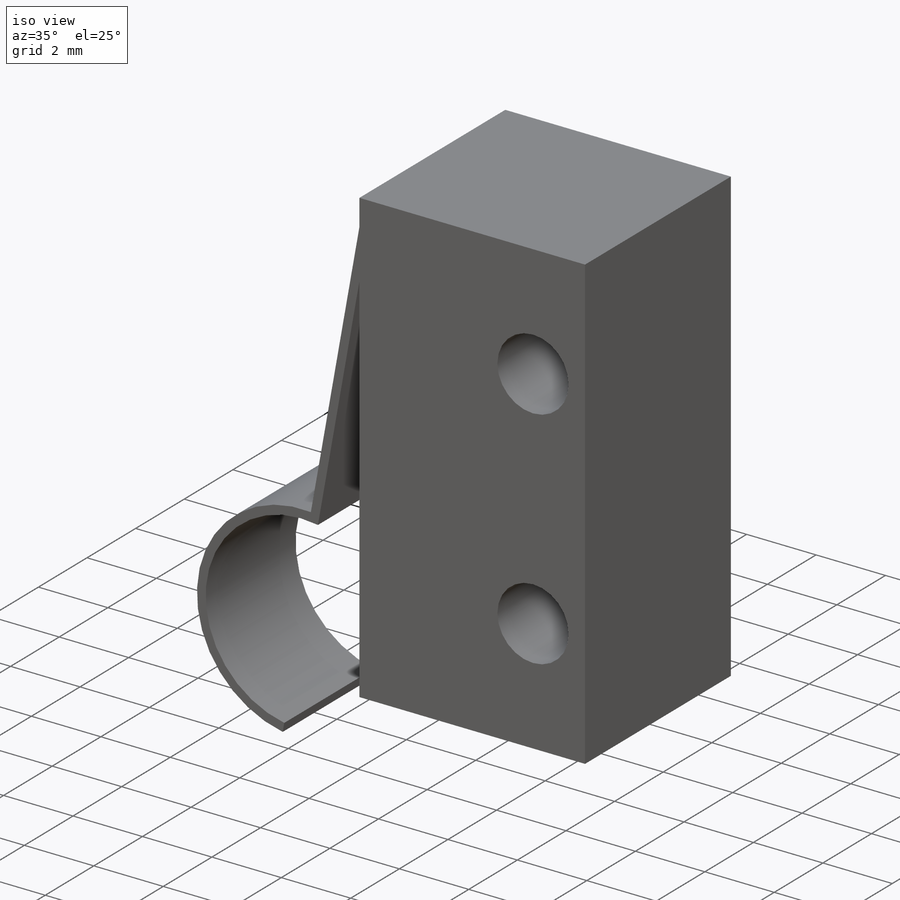
[diagram: iso view]
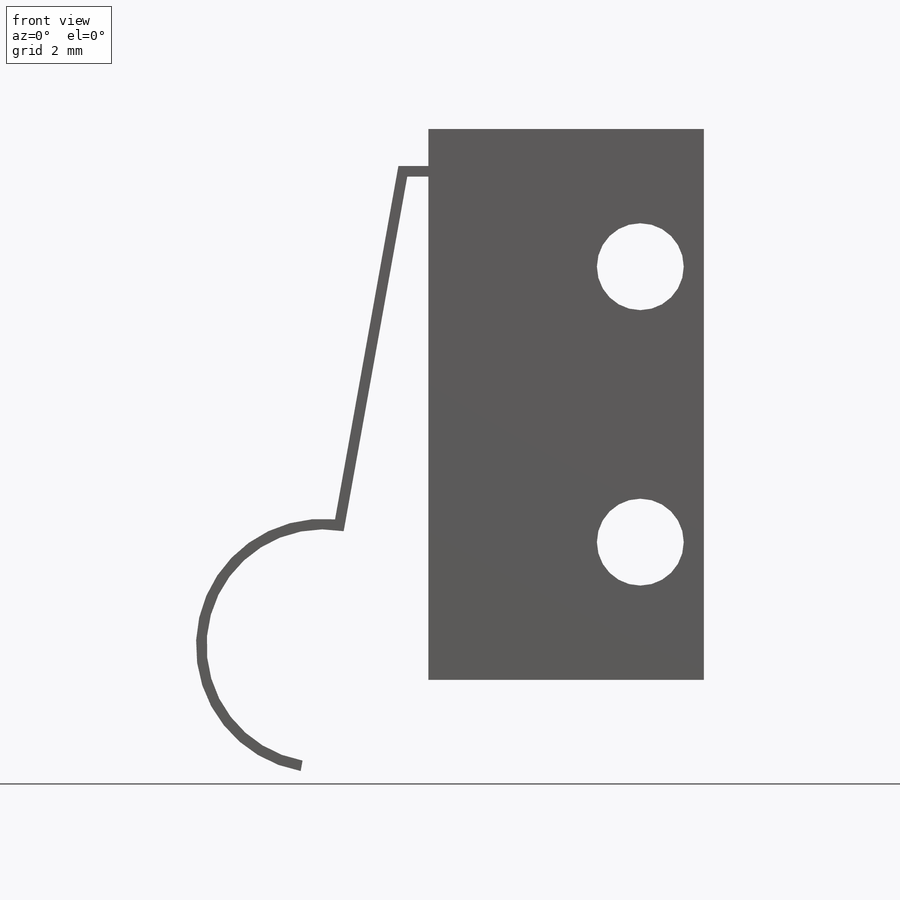
[diagram: front view]
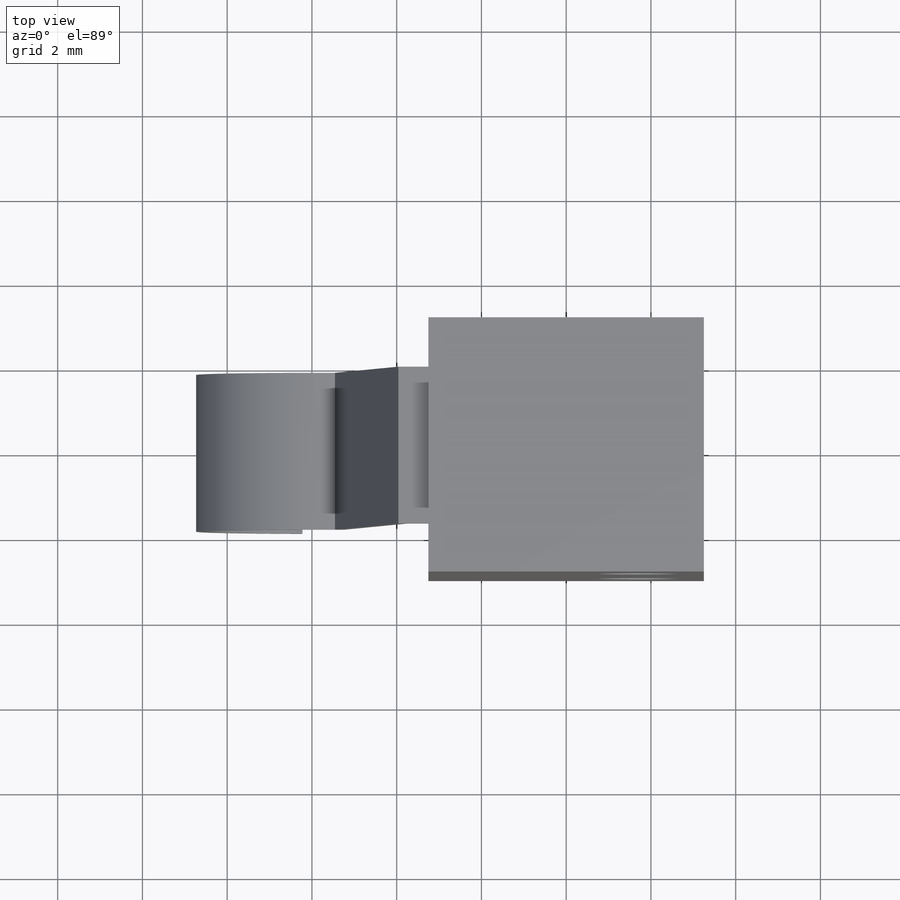
[diagram: top view]
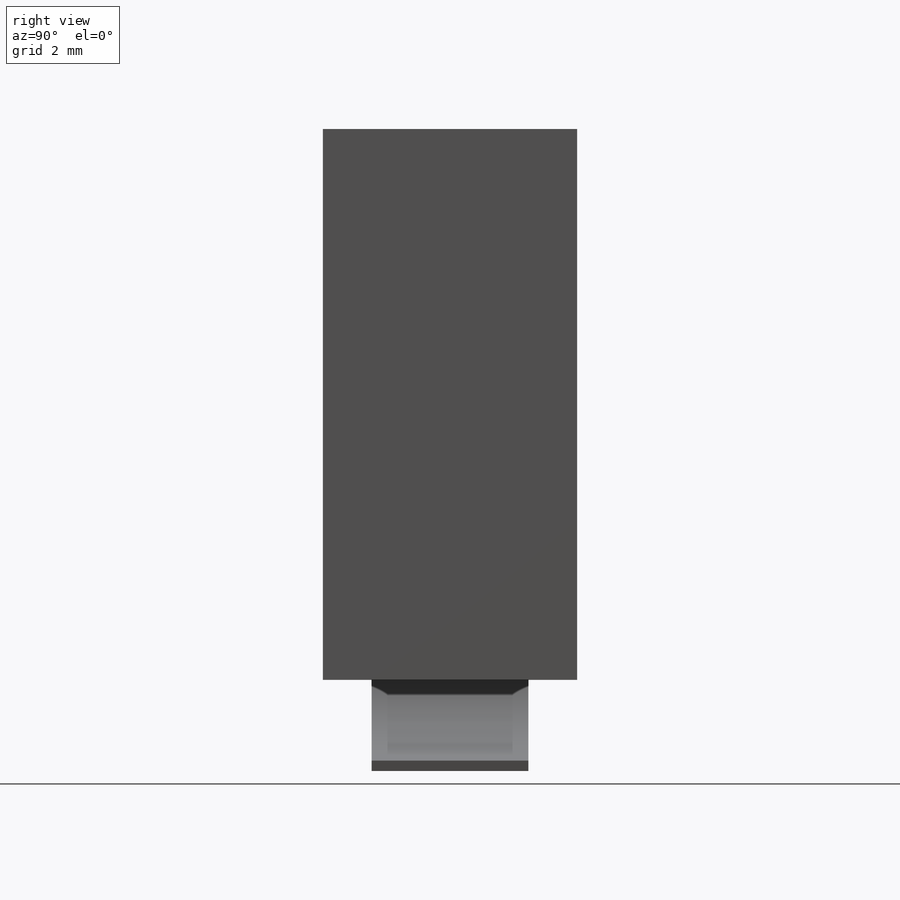
[diagram: right view]
SOLIDWORKS PART (.sldprt)
format: sldprt  version: not decoded by parser v0  size: 147,456 bytes
history: native  units: mm
features: sketch x4, material x1, extrude x1, cut_extrude x1 (+11 scaffold rows collapsed)
feature tree (18):
  scaffold x11  (default folders/planes/origin — collapsed)
  material  "Material <not specified>"
  sketch  "Sketch1"  dims[D1=13.0mm D2=6.5mm]
  extrude  "Boss-Extrude1"  Depth=6mm
  sketch  "Sketch4"  dims[D2=2.05mm D1=5.0mm D3=6.5mm]
  cut_extrude  "Cut-Extrude1"  [1 undecoded]
  sketch  "Sketch8"  dims[D1=1.0mm D2=0.25mm D3=3.7mm]
  sketch  "Sketch9"  dims[c1.D1=0.5mm c1.D2=8.5mm c1.D3=5.5mm c1.D4=~7.86149mm c2.D4=~22.349551deg c3.D4=2.0mm c3.D1=3.7mm c3.D5=0.25mm c3.D6=10.0mm c3.D7=5.0mm]
decode coverage: 5 of 6 modeling features carry decoded parameters
note: ~ marks probable driven/reference dimensions
note: 1 parameter value undecoded
note: suppression state not decoded; provenance and decode notes live in map.json
